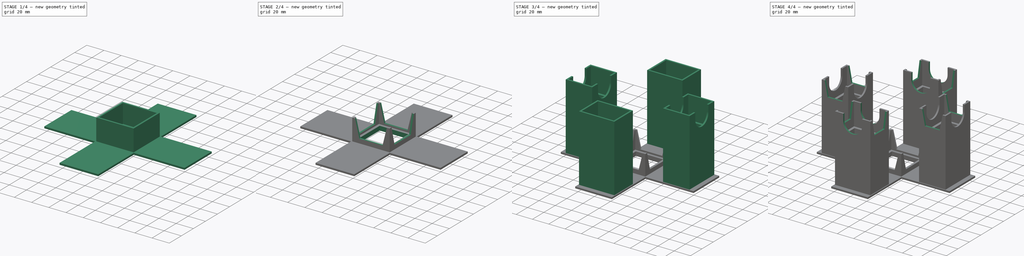
[diagram: build sequence overview — one tinted view per stage of 4, left to right]
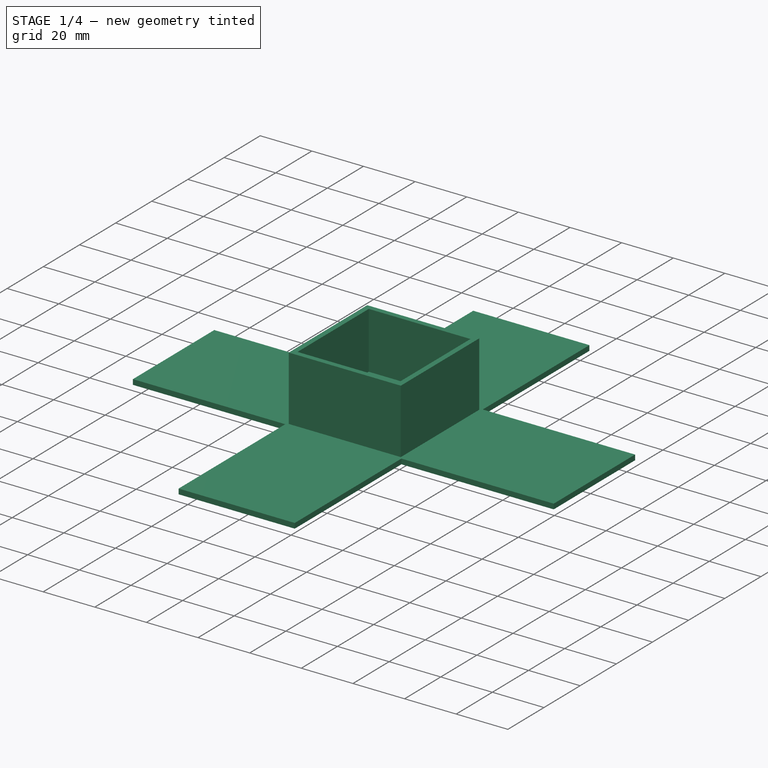
[diagram: stage 1 of 4 — iso view after this stage's code; geometry added in this stage tinted green]
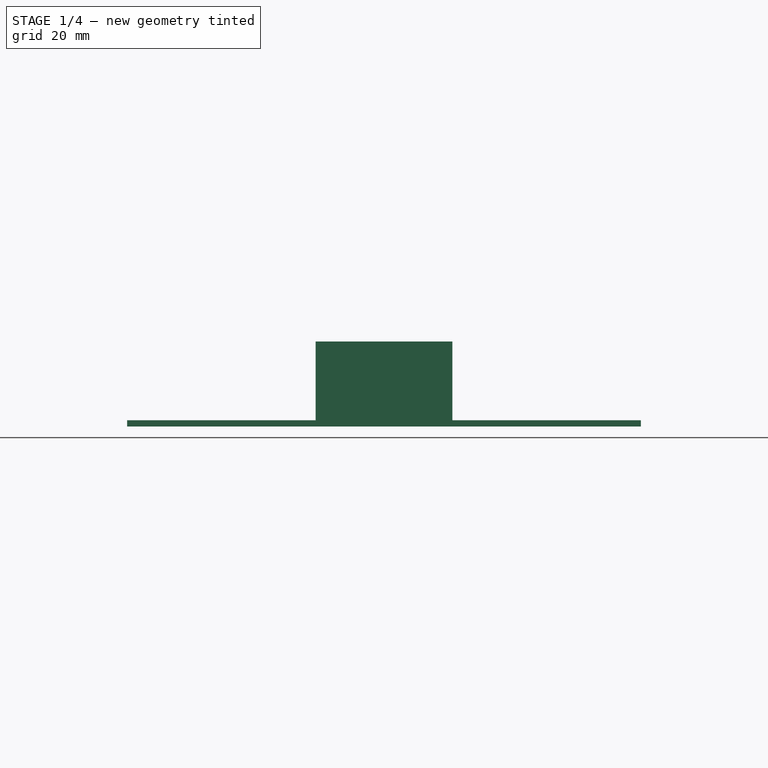
[diagram: stage 1 of 4 — front view after this stage's code; geometry added in this stage tinted green]
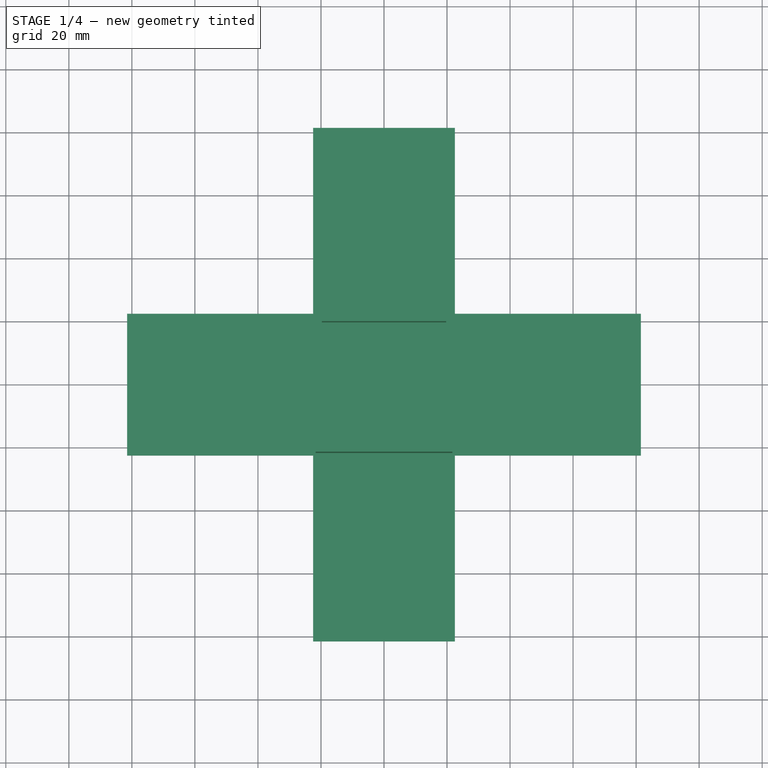
[diagram: stage 1 of 4 — top view after this stage's code; geometry added in this stage tinted green]
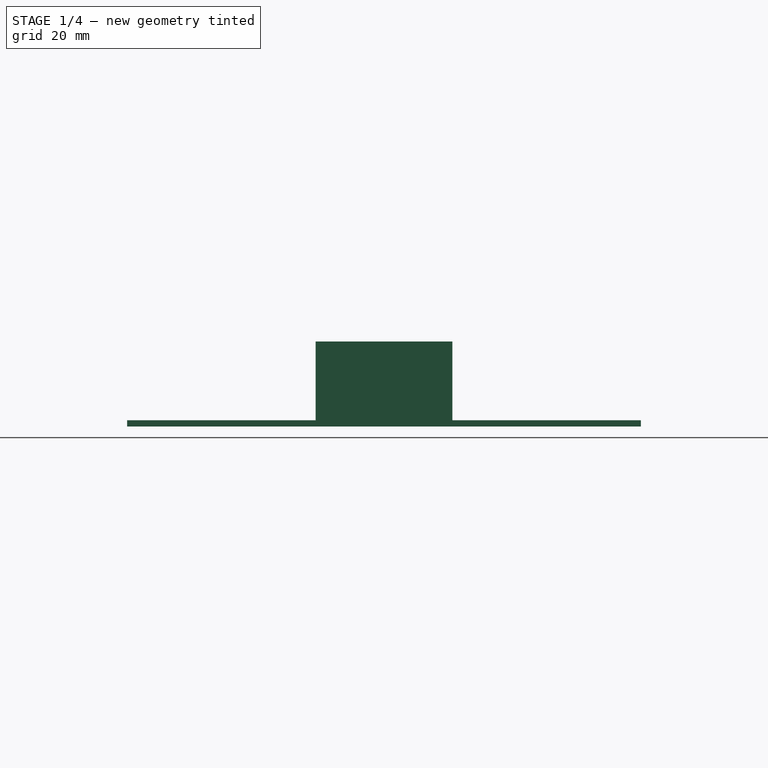
[diagram: stage 1 of 4 — right view after this stage's code; geometry added in this stage tinted green]
FCSTD DOCUMENT  (FreeCAD 0.15R4671 (Git))
Label: Rubiks Robot Frame
License: All rights reserved
LicenseURL: http://en.wikipedia.org/wiki/All_rights_reserved
objects: Sketcher::SketchObject×14, PartDesign::Pocket×10, PartDesign::Pad×3
note: 40 computed .brp shape members not serialized (recipe doc carries the construction recipe); baked Part::Feature solids carry a one-line shape summary decoded from their .brp

FEATURE [Sketcher::SketchObject] Sketch
  sketch-geometry (12):
    g0: LineSegment StartX=-81.5 StartY=22.5 StartZ=0 EndX=-22.5 EndY=22.5 EndZ=0
    g1: LineSegment StartX=-22.5 StartY=-22.5 StartZ=0 EndX=-81.5 EndY=-22.5 EndZ=0
    g2: LineSegment StartX=-81.5 StartY=-22.5 StartZ=0 EndX=-81.5 EndY=22.5 EndZ=0
    g3: LineSegment StartX=22.5 StartY=22.5 StartZ=0 EndX=22.5 EndY=81.5 EndZ=0
    g4: LineSegment StartX=22.5 StartY=81.5 StartZ=0 EndX=-22.5 EndY=81.5 EndZ=0
    g5: LineSegment StartX=-22.5 StartY=81.5 StartZ=0 EndX=-22.5 EndY=22.5 EndZ=0
    g6: LineSegment StartX=22.5 StartY=22.5 StartZ=0 EndX=81.5 EndY=22.5 EndZ=0
    g7: LineSegment StartX=81.5 StartY=22.5 StartZ=0 EndX=81.5 EndY=-22.5 EndZ=0
    g8: LineSegment StartX=81.5 StartY=-22.5 StartZ=0 EndX=22.5 EndY=-22.5 EndZ=0
    g9: LineSegment StartX=-22.5 StartY=-22.5 StartZ=0 EndX=-22.5 EndY=-81.5 EndZ=0
    g10: LineSegment StartX=-22.5 StartY=-81.5 StartZ=0 EndX=22.5 EndY=-81.5 EndZ=0
    g11: LineSegment StartX=22.5 StartY=-81.5 StartZ=0 EndX=22.5 EndY=-22.5 EndZ=0
  constraints (37):
    c: Coincident(g1,g2)
    c: Coincident(g2,g0)
    c: Horizontal(g0)
    c: Horizontal(g1)
    c: Vertical(g2)
    c: Coincident(g3,g4)
    c: Coincident(g4,g5)
    c: Vertical(g3)
    c: Vertical(g5)
    c: Coincident(g6,g7)
    c: Coincident(g7,g8)
    c: Horizontal(g6)
    c: Horizontal(g8)
    c: Vertical(g7)
    c: Coincident(g9,g10)
    c: Coincident(g10,g11)
    c: Horizontal(g10)
    c: Vertical(g9)
    c: Vertical(g11)
    c: Symmetric(g0,g1,g-1)
    c: Coincident(g0,g5)
    c: Coincident(g3,g6)
    c: Coincident(g8,g11)
    c: Coincident(g1,g9)
    c: Equal(g2,g7)
    c: Equal(g7,g4)
    c: Equal(g4,g10)
    c: Equal(g0,g5)
    c: Equal(g5,g3)
    c: Equal(g3,g6)
    c: Equal(g6,g8)
    c: Equal(g8,g11)
    c: Equal(g11,g9)
    c: Equal(g9,g1)
    c: Symmetric(g4,g3,g-2)
    c: DistanceX(g0,g6) = 163
    c: DistanceY(g6,g7) = -45
FEATURE [PartDesign::Pad] Pad
  Length = 2
  Length2 = 100
  Sketch = -> Sketch
  Type = 0
FEATURE [Sketcher::SketchObject] Sketch001
  Placement = pos=(0,0,2) rot=(0,0,1;0rad)
  Support = -> Pad [Face14]
  sketch-geometry (4):
    g0: LineSegment StartX=-21.7 StartY=21.7 StartZ=0 EndX=21.7 EndY=21.7 EndZ=0
    g1: LineSegment StartX=21.7 StartY=21.7 StartZ=0 EndX=21.7 EndY=-21.7 EndZ=0
    g2: LineSegment StartX=21.7 StartY=-21.7 StartZ=0 EndX=-21.7 EndY=-21.7 EndZ=0
    g3: LineSegment StartX=-21.7 StartY=-21.7 StartZ=0 EndX=-21.7 EndY=21.7 EndZ=0
  constraints (12):
    c: Coincident(g0,g1)
    c: Coincident(g1,g2)
    c: Coincident(g2,g3)
    c: Coincident(g3,g0)
    c: Horizontal(g0)
    c: Horizontal(g2)
    c: Vertical(g1)
    c: Vertical(g3)
    c: Symmetric(g0,g0,g-2)
    c: Symmetric(g1,g0,g-1)
    c: Equal(g1,g0)
    c: Distance(g1) = 43.4
FEATURE [PartDesign::Pad] Pad001
  Length = 25
  Length2 = 100
  Sketch = -> Sketch001
  Type = 0
FEATURE [Sketcher::SketchObject] Sketch002
  Placement = pos=(0,0,27) rot=(0,0,1;0rad)
  Support = -> Pad001 [Face26]
  sketch-geometry (4):
    g0: LineSegment StartX=-19.7 StartY=19.7 StartZ=0 EndX=19.7 EndY=19.7 EndZ=0
    g1: LineSegment StartX=19.7 StartY=19.7 StartZ=0 EndX=19.7 EndY=-19.7 EndZ=0
    g2: LineSegment StartX=19.7 StartY=-19.7 StartZ=0 EndX=-19.7 EndY=-19.7 EndZ=0
    g3: LineSegment StartX=-19.7 StartY=-19.7 StartZ=0 EndX=-19.7 EndY=19.7 EndZ=0
  constraints (12):
    c: Coincident(g0,g1)
    c: Coincident(g1,g2)
    c: Coincident(g2,g3)
    c: Coincident(g3,g0)
    c: Horizontal(g0)
    c: Horizontal(g2)
    c: Vertical(g1)
    c: Vertical(g3)
    c: Symmetric(g0,g0,g-2)
    c: Symmetric(g1,g0,g-1)
    c: Equal(g1,g0)
    c: Distance(g1) = 39.4
FEATURE [PartDesign::Pocket] Pocket
  Length = 22
  Sketch = -> Sketch002
  Type = 0
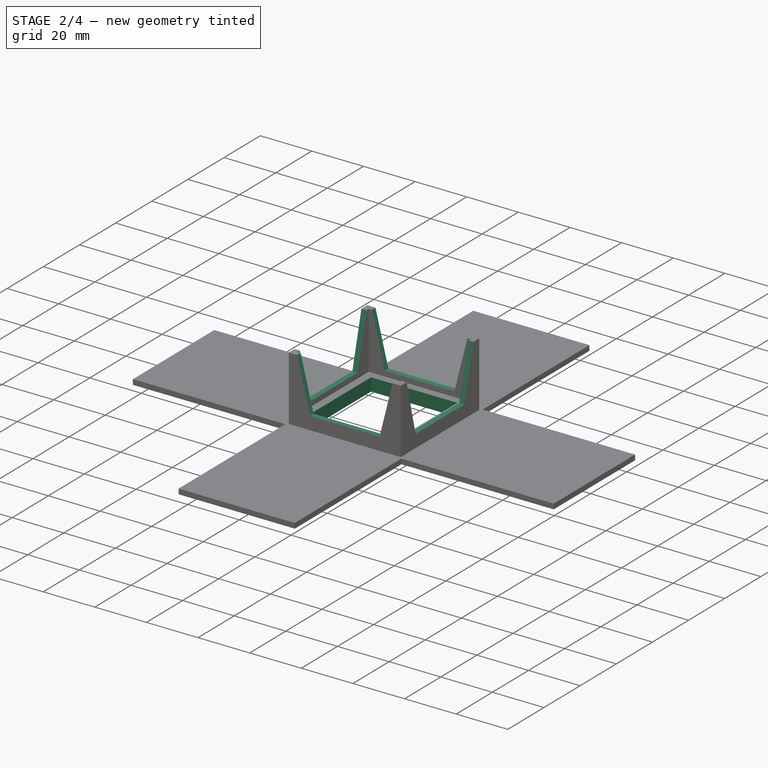
[diagram: stage 2 of 4 — iso view after this stage's code; geometry added in this stage tinted green]
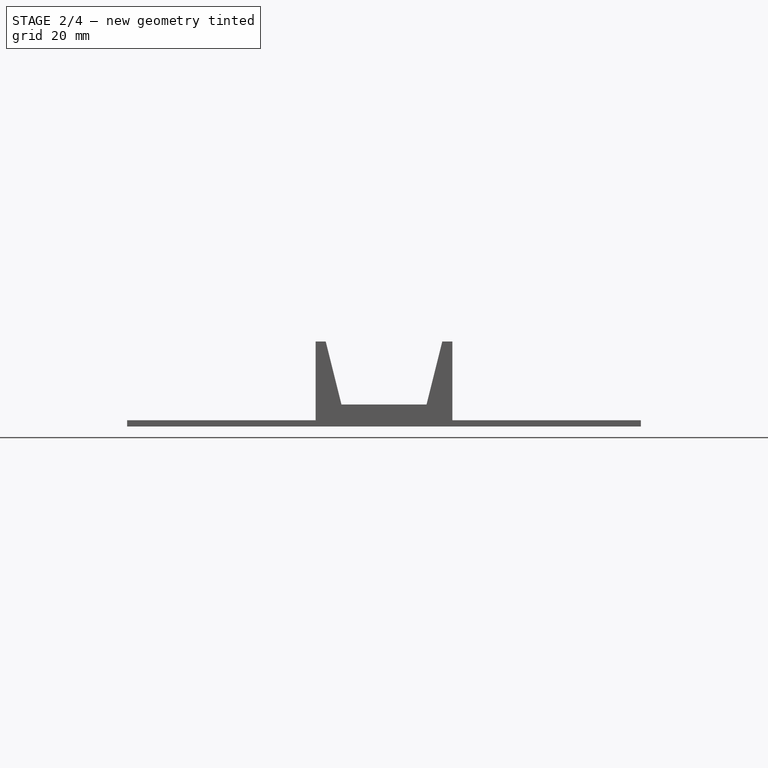
[diagram: stage 2 of 4 — front view after this stage's code; geometry added in this stage tinted green]
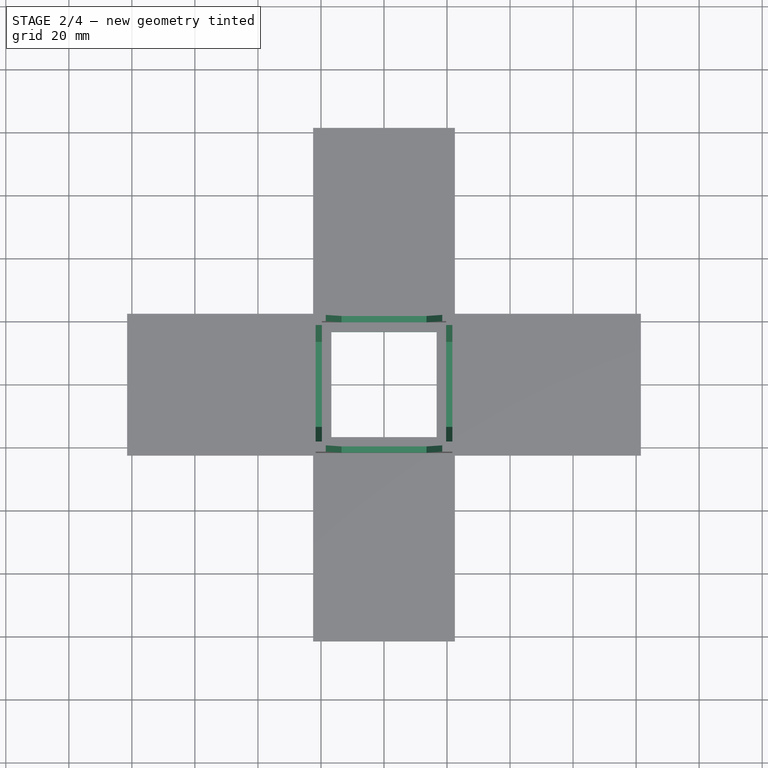
[diagram: stage 2 of 4 — top view after this stage's code; geometry added in this stage tinted green]
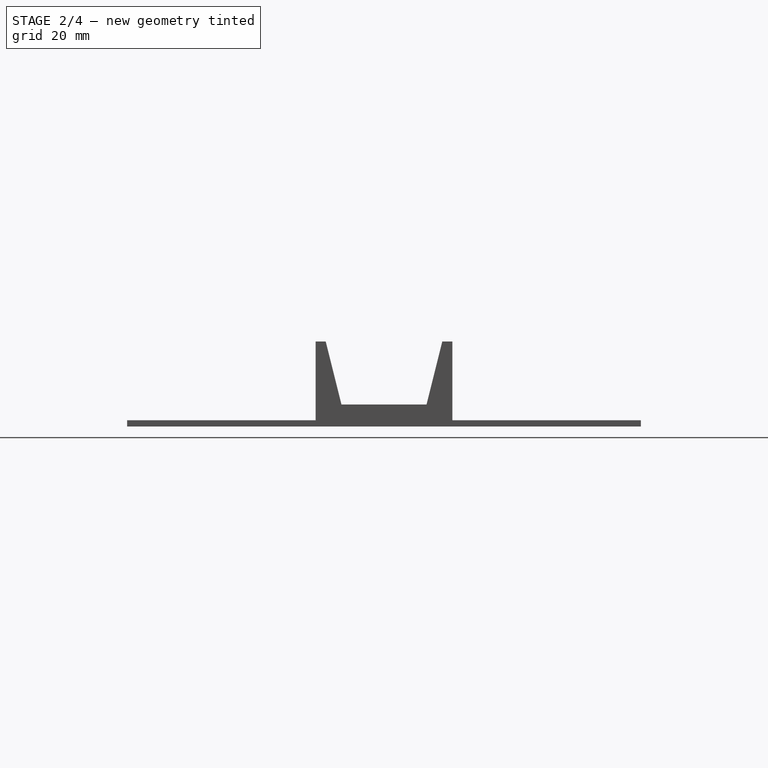
[diagram: stage 2 of 4 — right view after this stage's code; geometry added in this stage tinted green]
FEATURE [Sketcher::SketchObject] Sketch003
  Placement = pos=(0,0,5) rot=(0,0,1;0rad)
  Support = -> Pocket [Face31]
  sketch-geometry (4):
    g0: LineSegment StartX=-16.7 StartY=16.7 StartZ=0 EndX=16.7 EndY=16.7 EndZ=0
    g1: LineSegment StartX=16.7 StartY=16.7 StartZ=0 EndX=16.7 EndY=-16.7 EndZ=0
    g2: LineSegment StartX=16.7 StartY=-16.7 StartZ=0 EndX=-16.7 EndY=-16.7 EndZ=0
    g3: LineSegment StartX=-16.7 StartY=-16.7 StartZ=0 EndX=-16.7 EndY=16.7 EndZ=0
  constraints (12):
    c: Coincident(g0,g1)
    c: Coincident(g1,g2)
    c: Coincident(g2,g3)
    c: Coincident(g3,g0)
    c: Horizontal(g0)
    c: Horizontal(g2)
    c: Vertical(g1)
    c: Vertical(g3)
    c: Symmetric(g0,g0,g-2)
    c: Symmetric(g1,g0,g-1)
    c: Equal(g1,g0)
    c: Distance(g1) = 33.4
FEATURE [PartDesign::Pocket] Pocket001
  Length = 5
  Sketch = -> Sketch003
  Type = 1
FEATURE [Sketcher::SketchObject] Sketch004
  ExternalGeometry = -> [Pocket001]
  Placement = pos=(0,-81.5,0) rot=(1,0,0;1.5708rad)
  Support = -> Pocket001 [Face6]
  sketch-geometry (4):
    g0: LineSegment StartX=-18.5 StartY=27 StartZ=0 EndX=18.5 EndY=27 EndZ=0
    g1: LineSegment StartX=18.5 StartY=27 StartZ=0 EndX=13.5 EndY=7 EndZ=0
    g2: LineSegment StartX=13.5 StartY=7 StartZ=0 EndX=-13.5 EndY=7 EndZ=0
    g3: LineSegment StartX=-13.5 StartY=7 StartZ=0 EndX=-18.5 EndY=27 EndZ=0
  constraints (10):
    c: Coincident(g0,g1)
    c: Coincident(g1,g2)
    c: Coincident(g2,g3)
    c: Coincident(g3,g0)
    c: Horizontal(g0)
    c: Horizontal(g2)
    c: Symmetric(g0,g0,g-2)
    c: DistanceX(g0,g0) = 37
    c: Distance(g2) = 27
    c: Symmetric(g1,g2,g-2)
FEATURE [PartDesign::Pocket] Pocket002
  Length = 5
  Sketch = -> Sketch004
  Type = 1
FEATURE [Sketcher::SketchObject] Sketch005
  ExternalGeometry = -> [Pocket002]
  Placement = pos=(-21.7,0,0) rot=(0.57735,-0.57735,-0.57735;2.0944rad)
  Support = -> Pocket002 [Face22]
  sketch-geometry (4):
    g0: LineSegment StartX=-18.5 StartY=27 StartZ=0 EndX=18.5 EndY=27 EndZ=0
    g1: LineSegment StartX=18.5 StartY=27 StartZ=0 EndX=13.5 EndY=7 EndZ=0
    g2: LineSegment StartX=13.5 StartY=7 StartZ=0 EndX=-13.5 EndY=7 EndZ=0
    g3: LineSegment StartX=-13.5 StartY=7 StartZ=0 EndX=-18.5 EndY=27 EndZ=0
  constraints (4):
    c: Symmetric(g0,g0,g-2)
    c: Symmetric(g2,g1,g-2)
    c: Distance(g2) = 27
    c: Distance(g0) = 37
FEATURE [PartDesign::Pocket] Pocket003
  Length = 5
  Sketch = -> Sketch005
  Type = 1
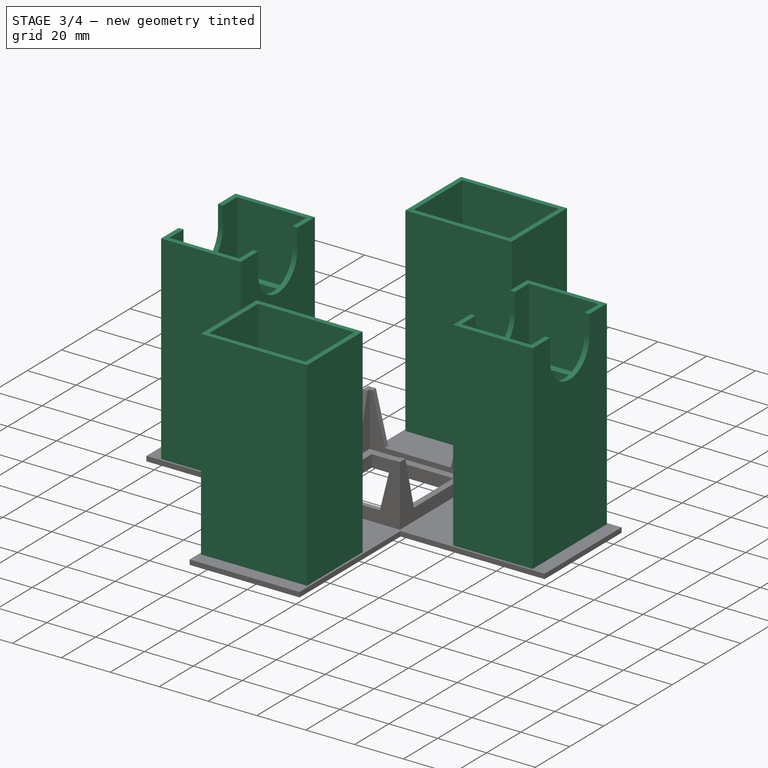
[diagram: stage 3 of 4 — iso view after this stage's code; geometry added in this stage tinted green]
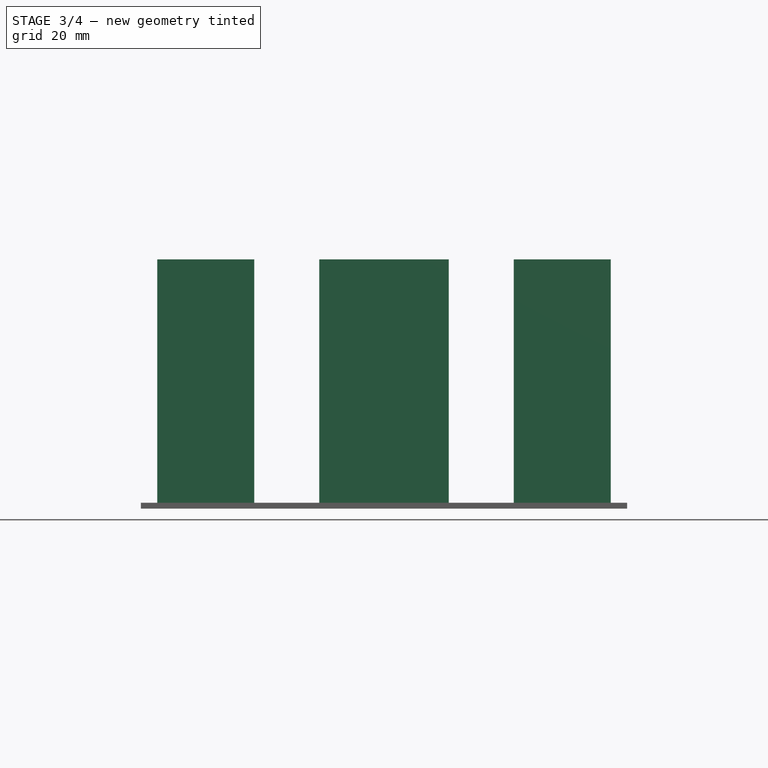
[diagram: stage 3 of 4 — front view after this stage's code; geometry added in this stage tinted green]
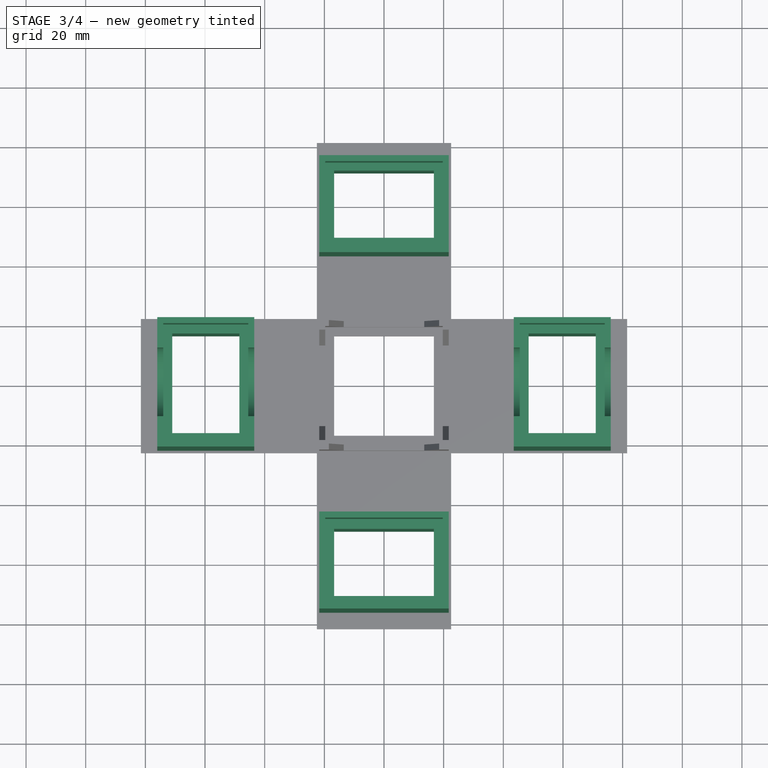
[diagram: stage 3 of 4 — top view after this stage's code; geometry added in this stage tinted green]
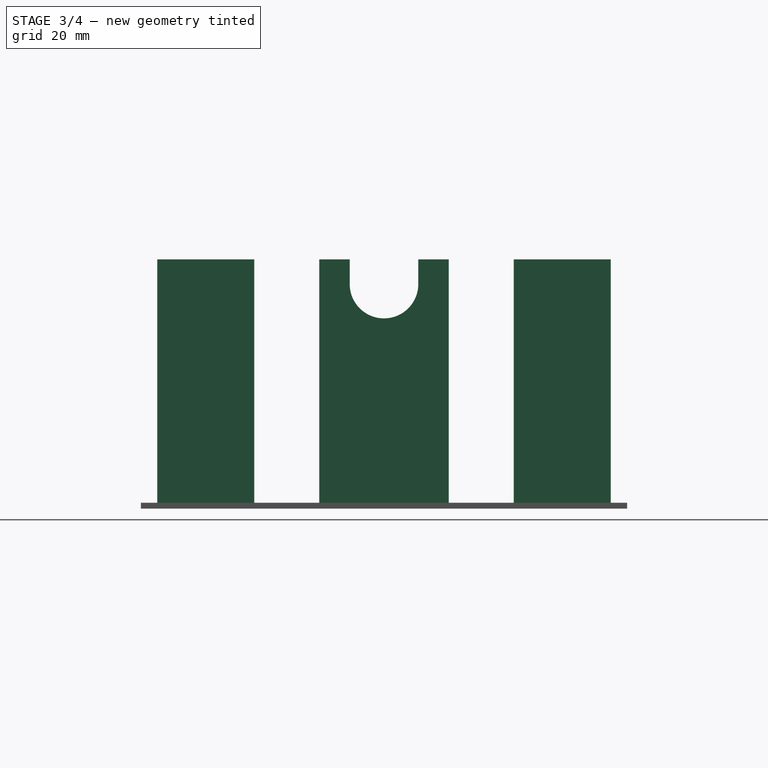
[diagram: stage 3 of 4 — right view after this stage's code; geometry added in this stage tinted green]
FEATURE [Sketcher::SketchObject] Sketch006
  ExternalGeometry = -> [Pocket003]
  Placement = pos=(0,0,2) rot=(0,0,1;0rad)
  Support = -> Pocket003 [Face5]
  sketch-geometry (24):
    g0: LineSegment StartX=-76 StartY=21.7 StartZ=0 EndX=-43.5 EndY=21.7 EndZ=0
    g1: LineSegment StartX=-43.5 StartY=21.7 StartZ=0 EndX=-43.5 EndY=-21.7 EndZ=0
    g2: LineSegment StartX=-43.5 StartY=-21.7 StartZ=0 EndX=-76 EndY=-21.7 EndZ=0
    g3: LineSegment StartX=-76 StartY=-21.7 StartZ=0 EndX=-76 EndY=21.7 EndZ=0
    g4: LineSegment [constr] StartX=-43.5 StartY=21.7 StartZ=0 EndX=-21.7 EndY=21.7 EndZ=0
    g5: LineSegment [constr] StartX=-43.5 StartY=-21.7 StartZ=0 EndX=-21.7 EndY=-21.7 EndZ=0
    g6: LineSegment StartX=43.5 StartY=21.7 StartZ=0 EndX=76 EndY=21.7 EndZ=0
    g7: LineSegment StartX=76 StartY=21.7 StartZ=0 EndX=76 EndY=-21.7 EndZ=0
    g8: LineSegment StartX=76 StartY=-21.7 StartZ=0 EndX=43.5 EndY=-21.7 EndZ=0
    g9: LineSegment StartX=43.5 StartY=-21.7 StartZ=0 EndX=43.5 EndY=21.7 EndZ=0
    g10: LineSegment StartX=-21.7 StartY=43.5 StartZ=0 EndX=21.7 EndY=43.5 EndZ=0
    g11: LineSegment StartX=21.7 StartY=43.5 StartZ=0 EndX=21.7 EndY=76 EndZ=0
    g12: LineSegment StartX=21.7 StartY=76 StartZ=0 EndX=-21.7 EndY=76 EndZ=0
    g13: LineSegment StartX=-21.7 StartY=76 StartZ=0 EndX=-21.7 EndY=43.5 EndZ=0
    g14: LineSegment StartX=-21.7 StartY=-43.5 StartZ=0 EndX=21.7 EndY=-43.5 EndZ=0
    g15: LineSegment StartX=21.7 StartY=-43.5 StartZ=0 EndX=21.7 EndY=-76 EndZ=0
    g16: LineSegment StartX=21.7 StartY=-76 StartZ=0 EndX=-21.7 EndY=-76 EndZ=0
    g17: LineSegment StartX=-21.7 StartY=-76 StartZ=0 EndX=-21.7 EndY=-43.5 EndZ=0
    g18: LineSegment [constr] StartX=-21.7 StartY=-21.7 StartZ=0 EndX=-21.7 EndY=-43.5 EndZ=0
    g19: LineSegment [constr] StartX=21.7 StartY=-21.7 StartZ=0 EndX=21.7 EndY=-43.5 EndZ=0
    g20: LineSegment [constr] StartX=21.7 StartY=-21.7 StartZ=0 EndX=43.5 EndY=-21.7 EndZ=0
    g21: LineSegment [constr] StartX=21.7 StartY=21.7 StartZ=0 EndX=43.5 EndY=21.7 EndZ=0
    g22: LineSegment [constr] StartX=21.7 StartY=21.7 StartZ=0 EndX=21.7 EndY=43.5 EndZ=0
    g23: LineSegment [constr] StartX=-21.7 StartY=43.5 StartZ=0 EndX=-21.7 EndY=21.7 EndZ=0
  constraints (64):
    c: Coincident(g0,g1)
    c: Coincident(g1,g2)
    c: Coincident(g2,g3)
    c: Coincident(g3,g0)
    c: Horizontal(g0)
    c: Horizontal(g2)
    c: Vertical(g1)
    c: Vertical(g3)
    c: Coincident(g4,g0)
    c: Coincident(g4,g-9)
    c: Coincident(g5,g1)
    c: Coincident(g5,g-8)
    c: Horizontal(g4)
    c: Horizontal(g5)
    c: Distance(g0) = 32.5
    c: DistanceX(g0,g-6) = 23.8
    c: Coincident(g6,g7)
    c: Coincident(g7,g8)
    c: Coincident(g8,g9)
    c: Coincident(g9,g6)
    c: Horizontal(g6)
    c: Horizontal(g8)
    c: Vertical(g7)
    c: Vertical(g9)
    c: Coincident(g10,g11)
    c: Coincident(g11,g12)
    c: Coincident(g12,g13)
    c: Coincident(g13,g10)
    c: Horizontal(g10)
    c: Horizontal(g12)
    c: Vertical(g11)
    c: Vertical(g13)
    c: Coincident(g14,g15)
    c: Coincident(g15,g16)
    c: Coincident(g16,g17)
    c: Coincident(g17,g14)
    c: Horizontal(g14)
    c: Horizontal(g16)
    c: Vertical(g15)
    c: Vertical(g17)
    c: Coincident(g18,g5)
    c: Coincident(g18,g14)
    c: Coincident(g19,g-10)
    c: Coincident(g19,g14)
    c: Vertical(g19)
    c: Coincident(g20,g19)
    c: Coincident(g20,g8)
    c: Horizontal(g20)
    c: Coincident(g21,g-10)
    c: Coincident(g21,g6)
    c: Coincident(g22,g10)
    c: Coincident(g23,g10)
    c: Coincident(g23,g4)
    c: Vertical(g23)
    c: Vertical(g22)
    c: Vertical(g18)
    c: Horizontal(g21)
    c: Equal(g4,g23)
    c: Equal(g23,g21)
    c: Equal(g21,g19)
    c: Coincident(g21,g22)
    c: Equal(g0,g13)
    c: Equal(g13,g6)
    c: Equal(g6,g15)
FEATURE [PartDesign::Pad] Pad002
  Length = 81.6
  Length2 = 100
  Sketch = -> Sketch006
  Type = 0
FEATURE [Sketcher::SketchObject] Sketch007
  ExternalGeometry = -> [Pad002]
  Placement = pos=(0,0,83.6) rot=(0,0,1;0rad)
  Support = -> Pad002 [Face41]
  sketch-geometry (20):
    g0: LineSegment StartX=-74 StartY=19.7 StartZ=0 EndX=-45.5 EndY=19.7 EndZ=0
    g1: LineSegment StartX=-45.5 StartY=19.7 StartZ=0 EndX=-45.5 EndY=-19.7 EndZ=0
    g2: LineSegment StartX=-45.5 StartY=-19.7 StartZ=0 EndX=-74 EndY=-19.7 EndZ=0
    g3: LineSegment StartX=-74 StartY=-19.7 StartZ=0 EndX=-74 EndY=19.7 EndZ=0
    g4: LineSegment StartX=45.5 StartY=19.7 StartZ=0 EndX=74 EndY=19.7 EndZ=0
    g5: LineSegment StartX=74 StartY=19.7 StartZ=0 EndX=74 EndY=-19.7 EndZ=0
    g6: LineSegment StartX=74 StartY=-19.7 StartZ=0 EndX=45.5 EndY=-19.7 EndZ=0
    g7: LineSegment StartX=45.5 StartY=-19.7 StartZ=0 EndX=45.5 EndY=19.7 EndZ=0
    g8: LineSegment StartX=-19.7 StartY=74 StartZ=0 EndX=19.7 EndY=74 EndZ=0
    g9: LineSegment StartX=19.7 StartY=74 StartZ=0 EndX=19.7 EndY=45.5 EndZ=0
    g10: LineSegment StartX=19.7 StartY=45.5 StartZ=0 EndX=-19.7 EndY=45.5 EndZ=0
    g11: LineSegment StartX=-19.7 StartY=45.5 StartZ=0 EndX=-19.7 EndY=74 EndZ=0
    g12: LineSegment StartX=-19.7 StartY=-45.5 StartZ=0 EndX=19.7 EndY=-45.5 EndZ=0
    g13: LineSegment StartX=19.7 StartY=-45.5 StartZ=0 EndX=19.7 EndY=-74 EndZ=0
    g14: LineSegment StartX=19.7 StartY=-74 StartZ=0 EndX=-19.7 EndY=-74 EndZ=0
    g15: LineSegment StartX=-19.7 StartY=-74 StartZ=0 EndX=-19.7 EndY=-45.5 EndZ=0
    g16: LineSegment [constr] StartX=-19.7 StartY=19.7 StartZ=0 EndX=-19.7 EndY=45.5 EndZ=0
    g17: LineSegment [constr] StartX=19.7 StartY=19.7 StartZ=0 EndX=45.5 EndY=19.7 EndZ=0
    g18: LineSegment [constr] StartX=-45.5 StartY=-19.7 StartZ=0 EndX=-19.7 EndY=-19.7 EndZ=0
    g19: LineSegment [constr] StartX=19.7 StartY=-45.5 StartZ=0 EndX=19.7 EndY=-19.7 EndZ=0
  constraints (57):
    c: Coincident(g0,g1)
    c: Coincident(g1,g2)
    c: Coincident(g2,g3)
    c: Coincident(g3,g0)
    c: Horizontal(g0)
    c: Horizontal(g2)
    c: Vertical(g3)
    c: Coincident(g4,g5)
    c: Coincident(g5,g6)
    c: Coincident(g6,g7)
    c: Coincident(g7,g4)
    c: Horizontal(g4)
    c: Horizontal(g6)
    c: Vertical(g5)
    c: Vertical(g7)
    c: Coincident(g8,g9)
    c: Coincident(g9,g10)
    c: Coincident(g10,g11)
    c: Coincident(g11,g8)
    c: Horizontal(g8)
    c: Horizontal(g10)
    c: Vertical(g9)
    c: Vertical(g11)
    c: Coincident(g12,g13)
    c: Coincident(g13,g14)
    c: Coincident(g14,g15)
    c: Coincident(g15,g12)
    c: Horizontal(g12)
    c: Horizontal(g14)
    c: Vertical(g13)
    c: Vertical(g15)
    c: Equal(g1,g10)
    c: Equal(g10,g7)
    c: Equal(g7,g12)
    c: Symmetric(g0,g1,g-1)
    c: Symmetric(g4,g6,g-1)
    c: Symmetric(g9,g10,g-2)
    c: Symmetric(g12,g12,g-2)
    c: Equal(g9,g4)
    c: Equal(g4,g13)
    c: Equal(g13,g2)
    c: Distance(g9) = 28.5
    c: Coincident(g16,g10)
    c: Vertical(g16)
    c: Coincident(g17,g-12)
    c: Horizontal(g17)
    c: Coincident(g18,g1)
    c: Coincident(g18,g-14)
    c: Horizontal(g18)
    c: Coincident(g19,g12)
    c: Coincident(g19,g-13)
    c: Equal(g16,g17)
    c: Equal(g17,g19)
    c: Equal(g19,g18)
    c: Distance(g18) = 25.8
    c: Coincident(g17,g4)
    c: Coincident(g-14,g16)
FEATURE [PartDesign::Pocket] Pocket004
  Length = 27.8
  Sketch = -> Sketch007
  Type = 0
FEATURE [Sketcher::SketchObject] Sketch008
  ExternalGeometry = -> [Pocket004]
  Placement = pos=(0,0,55.8) rot=(0,0,1;0rad)
  Support = -> Pocket004 [Face81]
  sketch-geometry (16):
    g0: LineSegment StartX=-71 StartY=16.7 StartZ=0 EndX=-48.5 EndY=16.7 EndZ=0
    g1: LineSegment StartX=-48.5 StartY=16.7 StartZ=0 EndX=-48.5 EndY=-16.7 EndZ=0
    g2: LineSegment StartX=-48.5 StartY=-16.7 StartZ=0 EndX=-71 EndY=-16.7 EndZ=0
    g3: LineSegment StartX=-71 StartY=-16.7 StartZ=0 EndX=-71 EndY=16.7 EndZ=0
    g4: LineSegment StartX=-16.7 StartY=71.3101 StartZ=0 EndX=16.7 EndY=71.3101 EndZ=0
    g5: LineSegment StartX=16.7 StartY=71.3101 StartZ=0 EndX=16.7 EndY=48.8101 EndZ=0
    g6: LineSegment StartX=16.7 StartY=48.8101 StartZ=0 EndX=-16.7 EndY=48.8101 EndZ=0
    g7: LineSegment StartX=-16.7 StartY=48.8101 StartZ=0 EndX=-16.7 EndY=71.3101 EndZ=0
    g8: LineSegment StartX=48.5 StartY=16.7 StartZ=0 EndX=71 EndY=16.7 EndZ=0
    g9: LineSegment StartX=71 StartY=16.7 StartZ=0 EndX=71 EndY=-16.7 EndZ=0
    g10: LineSegment StartX=71 StartY=-16.7 StartZ=0 EndX=48.5 EndY=-16.7 EndZ=0
    g11: LineSegment StartX=48.5 StartY=-16.7 StartZ=0 EndX=48.5 EndY=16.7 EndZ=0
    g12: LineSegment StartX=-16.7 StartY=-48.8101 StartZ=0 EndX=16.7 EndY=-48.8101 EndZ=0
    g13: LineSegment StartX=16.7 StartY=-48.8101 StartZ=0 EndX=16.7 EndY=-71.3101 EndZ=0
    g14: LineSegment StartX=16.7 StartY=-71.3101 StartZ=0 EndX=-16.7 EndY=-71.3101 EndZ=0
    g15: LineSegment StartX=-16.7 StartY=-71.3101 StartZ=0 EndX=-16.7 EndY=-48.8101 EndZ=0
  constraints (53):
    c: Coincident(g0,g1)
    c: Coincident(g1,g2)
    c: Coincident(g2,g3)
    c: Coincident(g3,g0)
    c: Horizontal(g0)
    c: Horizontal(g2)
    c: Vertical(g3)
    c: Coincident(g4,g5)
    c: Coincident(g5,g6)
    c: Coincident(g6,g7)
    c: Coincident(g7,g4)
    c: Horizontal(g4)
    c: Horizontal(g6)
    c: Vertical(g5)
    c: Vertical(g7)
    c: Coincident(g8,g9)
    c: Coincident(g9,g10)
    c: Coincident(g10,g11)
    c: Coincident(g11,g8)
    c: Horizontal(g8)
    c: Horizontal(g10)
    c: Vertical(g9)
    c: Vertical(g11)
    c: Coincident(g12,g13)
    c: Coincident(g13,g14)
    c: Coincident(g14,g15)
    c: Coincident(g15,g12)
    c: Horizontal(g12)
    c: Horizontal(g14)
    c: Vertical(g13)
    c: Vertical(g15)
    c: Equal(g14,g12)
    c: Equal(g12,g3)
    c: Equal(g11,g9)
    c: Equal(g9,g6)
    c: Equal(g6,g4)
    c: Equal(g7,g5)
    c: Equal(g5,g8)
    c: Equal(g8,g10)
    c: Equal(g10,g13)
    c: Equal(g13,g15)
    c: Equal(g15,g2)
    c: Equal(g2,g0)
    c: Symmetric(g0,g8,g-2)
    c: Symmetric(g12,g6,g-1)
    c: Symmetric(g0,g1,g-1)
    c: Symmetric(g5,g6,g-2)
    c: DistanceX(g0,g-17) = 3
    c: DistanceX(g2,g-16) = -3
    c: DistanceY(g2,g-16) = -3
    c: Equal(g6,g1)
    c: Equal(g1,g11)
    c: Equal(g11,g12)
FEATURE [PartDesign::Pocket] Pocket005
  Length = 5
  Sketch = -> Sketch008
  Type = 1
FEATURE [Sketcher::SketchObject] Sketch009
  ExternalGeometry = -> [Pocket005]
  Placement = pos=(-76,0,0) rot=(0.57735,-0.57735,-0.57735;2.0944rad)
  Support = -> Pocket005 [Face41]
  sketch-geometry (4):
    g0: LineSegment StartX=-11.5 StartY=83.6 StartZ=0 EndX=11.5 EndY=83.6 EndZ=0
    g1: LineSegment StartX=11.5 StartY=83.6 StartZ=0 EndX=11.5 EndY=75.3 EndZ=0
    g2: LineSegment StartX=-11.5 StartY=75.3 StartZ=0 EndX=-11.5 EndY=83.6 EndZ=0
    g3: ArcOfCircle CenterX=0 CenterY=75.3 CenterZ=0 NormalX=0 NormalY=0 NormalZ=1 Radius=11.5 StartAngle=3.1416 EndAngle=6.28319
  constraints (13):
    c: Coincident(g0,g1)
    c: Coincident(g2,g0)
    c: Horizontal(g0)
    c: Vertical(g1)
    c: Vertical(g2)
    c: Coincident(g3,g1)
    c: PointOnObject(g3,g-2)
    c: Coincident(g2,g3)
    c: PointOnObject(g0,g-4)
    c: Distance(g0) = 23
    c: DistanceY(g-3,g3) = 19.5
    c: Tangent(g3,g1)
    c: Tangent(g3,g2)
FEATURE [PartDesign::Pocket] Pocket006
  Length = 5
  Sketch = -> Sketch009
  Type = 1
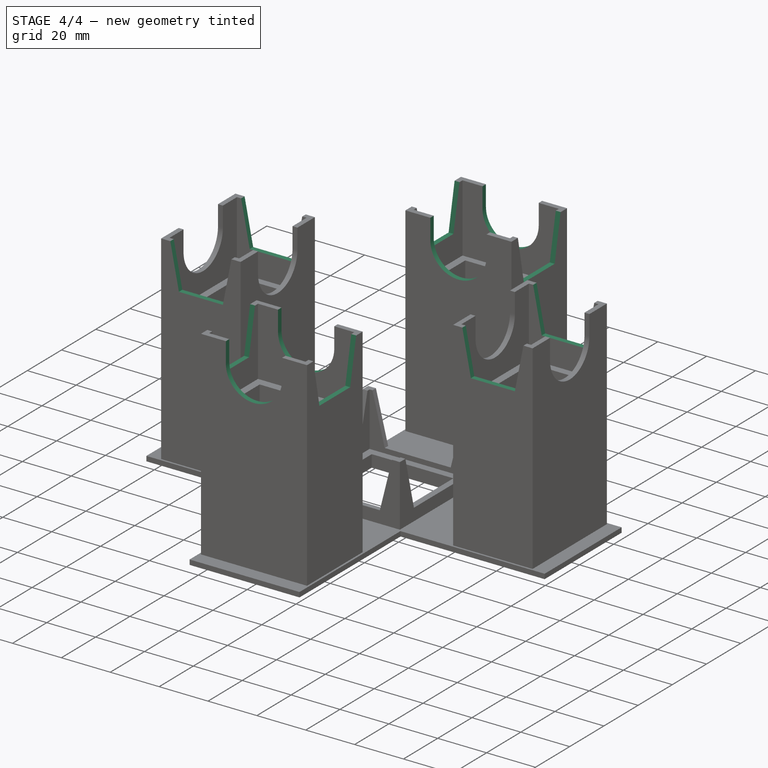
[diagram: stage 4 of 4 — iso view after this stage's code; geometry added in this stage tinted green]
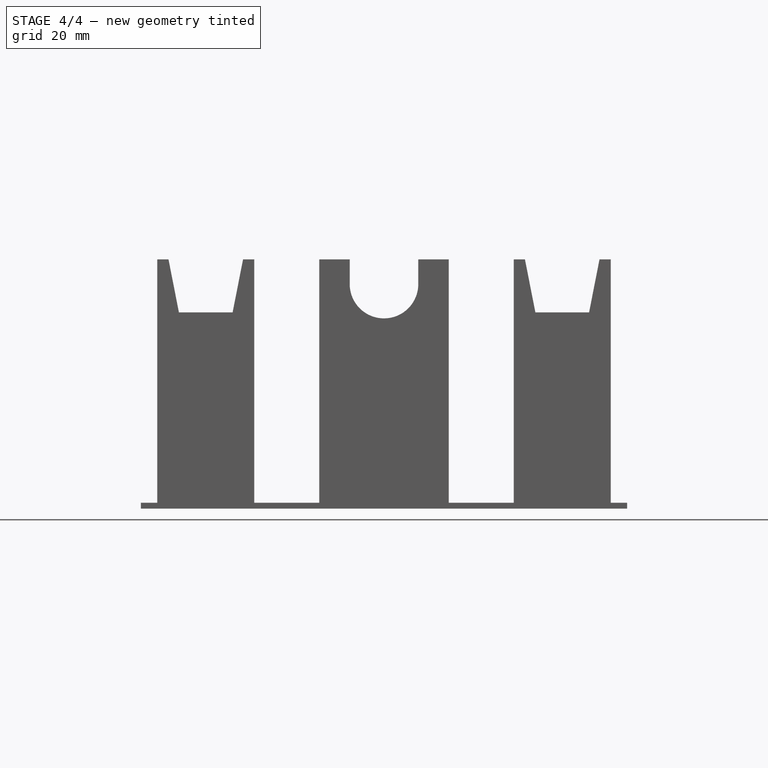
[diagram: stage 4 of 4 — front view after this stage's code; geometry added in this stage tinted green]
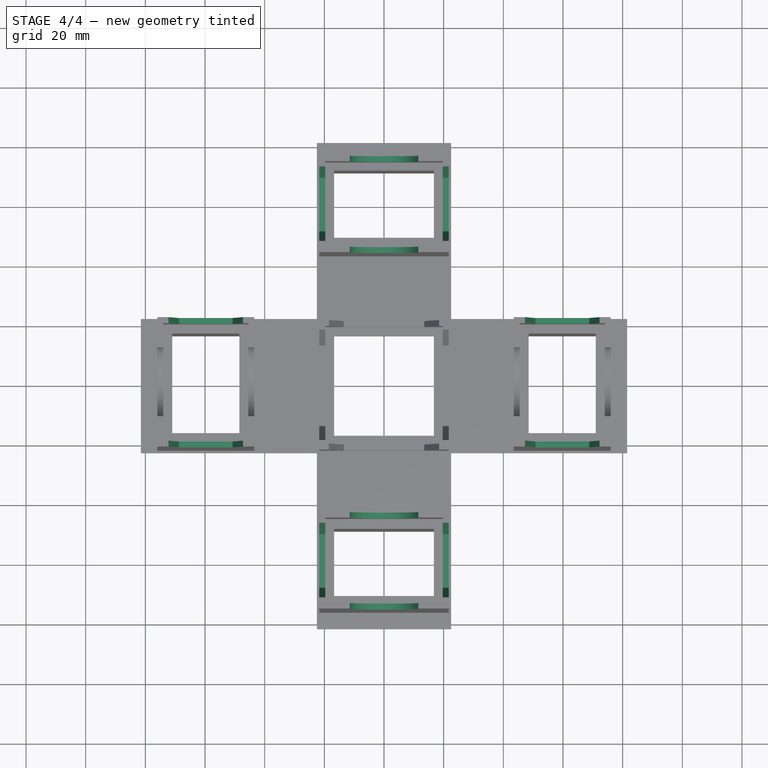
[diagram: stage 4 of 4 — top view after this stage's code; geometry added in this stage tinted green]
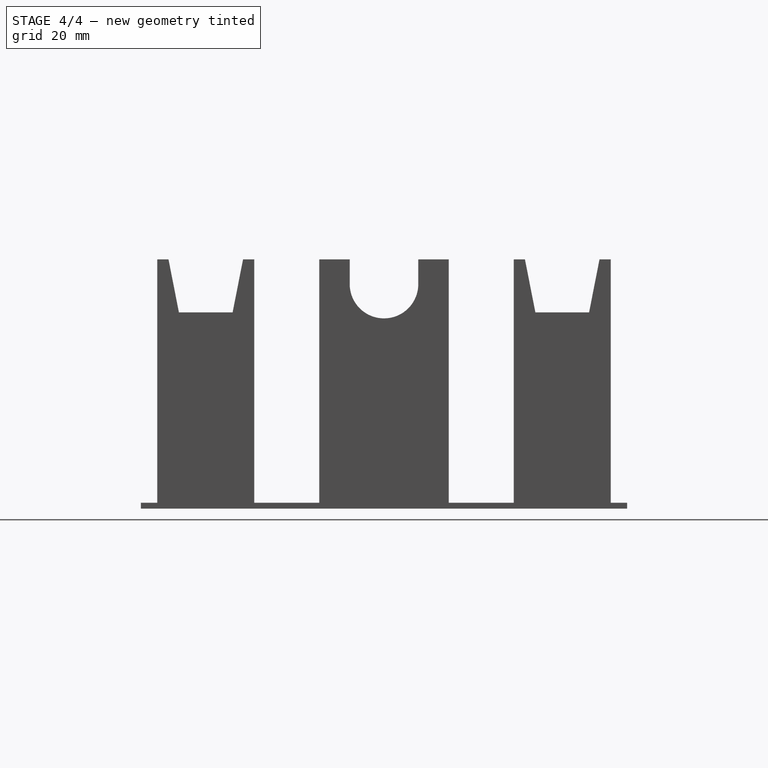
[diagram: stage 4 of 4 — right view after this stage's code; geometry added in this stage tinted green]
FEATURE [Sketcher::SketchObject] Sketch010
  ExternalGeometry = -> [Pocket006]
  Placement = pos=(0,76,0) rot=(0,0.707107,0.707107;3.14159rad)
  Support = -> Pocket006 [Face37]
  sketch-geometry (4):
    g0: LineSegment StartX=-11.5 StartY=83.6 StartZ=0 EndX=11.5 EndY=83.6 EndZ=0
    g1: LineSegment StartX=11.5 StartY=83.6 StartZ=0 EndX=11.5 EndY=75.3 EndZ=0
    g2: LineSegment StartX=-11.5 StartY=75.3 StartZ=0 EndX=-11.5 EndY=83.6 EndZ=0
    g3: ArcOfCircle CenterX=0 CenterY=75.3 CenterZ=0 NormalX=0 NormalY=0 NormalZ=1 Radius=11.5 StartAngle=3.14159 EndAngle=6.28319
  constraints (13):
    c: Coincident(g0,g1)
    c: Coincident(g2,g0)
    c: Horizontal(g0)
    c: Vertical(g1)
    c: Vertical(g2)
    c: Coincident(g3,g1)
    c: PointOnObject(g3,g-2)
    c: Coincident(g2,g3)
    c: Distance(g0) = 23
    c: DistanceY(g-4,g3) = 19.5
    c: PointOnObject(g0,g-3)
    c: Tangent(g3,g1)
    c: Tangent(g3,g2)
FEATURE [PartDesign::Pocket] Pocket007
  Length = 5
  Sketch = -> Sketch010
  Type = 1
FEATURE [Sketcher::SketchObject] Sketch011
  Placement = pos=(21.7,0,0) rot=(0.57735,0.57735,0.57735;2.0944rad)
  Support = -> Pocket007 [Face36]
  sketch-geometry (7):
    g0: LineSegment StartX=47.25 StartY=83.6 StartZ=0 EndX=50.75 EndY=65.8 EndZ=0
    g1: LineSegment StartX=50.75 StartY=65.8 StartZ=0 EndX=68.75 EndY=65.8 EndZ=0
    g2: LineSegment StartX=68.75 StartY=65.8 StartZ=0 EndX=72.25 EndY=83.6 EndZ=0
    g3: LineSegment StartX=-72.25 StartY=83.6 StartZ=0 EndX=-47.25 EndY=83.6 EndZ=0
    g4: LineSegment StartX=-47.25 StartY=83.6 StartZ=0 EndX=-50.75 EndY=65.8 EndZ=0
    g5: LineSegment StartX=-50.75 StartY=65.8 StartZ=0 EndX=-68.75 EndY=65.8 EndZ=0
    g6: LineSegment StartX=-68.75 StartY=65.8 StartZ=0 EndX=-72.25 EndY=83.6 EndZ=0
  constraints (15):
    c: Coincident(g0,g1)
    c: Horizontal(g1)
    c: Coincident(g1,g2)
    c: DistanceX(g0,g2) = 25
    c: Distance(g1) = 18
    c: Horizontal(g3)
    c: Coincident(g3,g4)
    c: Coincident(g4,g5)
    c: Horizontal(g5)
    c: Coincident(g5,g6)
    c: Coincident(g6,g3)
    c: Symmetric(g4,g0,g-2)
    c: Symmetric(g5,g1,g-2)
    c: Symmetric(g3,g2,g-2)
    c: Symmetric(g3,g0,g-2)
FEATURE [PartDesign::Pocket] Pocket008
  Length = 5
  Sketch = -> Sketch011
  Type = 1
FEATURE [Sketcher::SketchObject] Sketch012
  Placement = pos=(0,21.7,0) rot=(0,0.707107,0.707107;3.14159rad)
  Support = -> Pocket008 [Face50]
  sketch-geometry (8):
    g0: LineSegment StartX=-72.25 StartY=83.6 StartZ=0 EndX=-68.75 EndY=65.8 EndZ=0
    g1: LineSegment StartX=-68.75 StartY=65.8 StartZ=0 EndX=-50.75 EndY=65.8 EndZ=0
    g2: LineSegment StartX=-50.75 StartY=65.8 StartZ=0 EndX=-47.25 EndY=83.6 EndZ=0
    g3: LineSegment StartX=-47.25 StartY=83.6 StartZ=0 EndX=-72.25 EndY=83.6 EndZ=0
    g4: LineSegment StartX=47.25 StartY=83.6 StartZ=0 EndX=72.25 EndY=83.6 EndZ=0
    g5: LineSegment StartX=72.25 StartY=83.6 StartZ=0 EndX=68.75 EndY=65.8 EndZ=0
    g6: LineSegment StartX=68.75 StartY=65.8 StartZ=0 EndX=50.75 EndY=65.8 EndZ=0
    g7: LineSegment StartX=50.75 StartY=65.8 StartZ=0 EndX=47.25 EndY=83.6 EndZ=0
FEATURE [PartDesign::Pocket] Pocket009
  Length = 5
  Sketch = -> Sketch012
  Type = 1
FEATURE [Sketcher::SketchObject] Sketch013
  Placement = pos=(21.7,0,0) rot=(0.57735,0.57735,0.57735;2.0944rad)
  Support = -> Pocket009 [Face54]
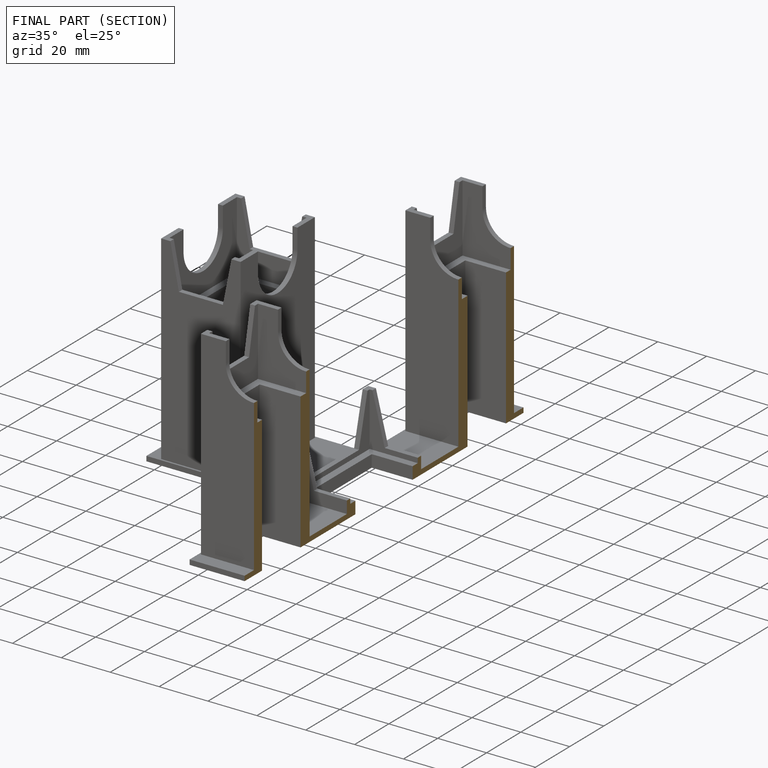
[diagram: finished part — half-section view (interior)]
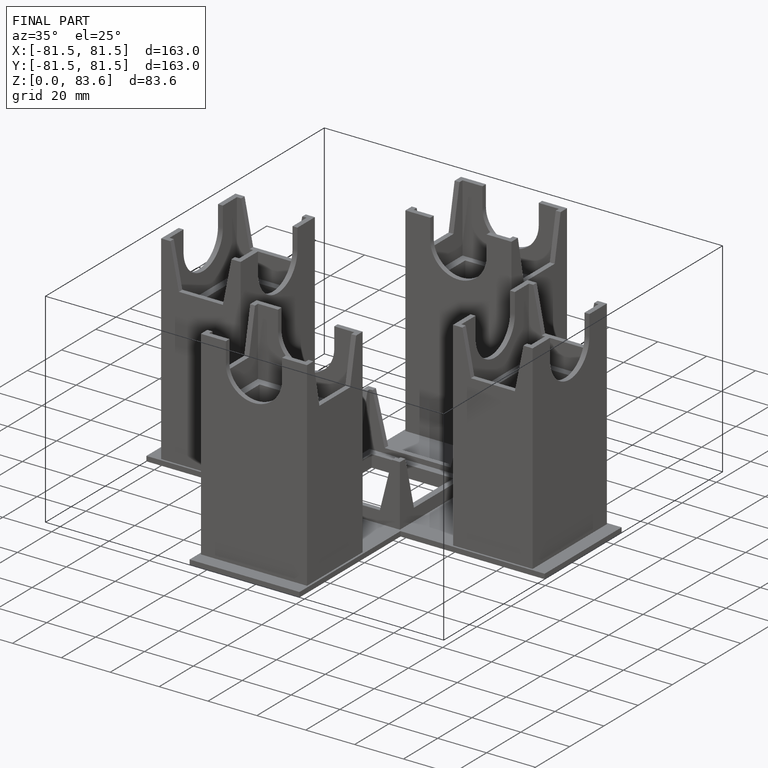
[diagram: finished part — iso view with bounding-box wireframe]
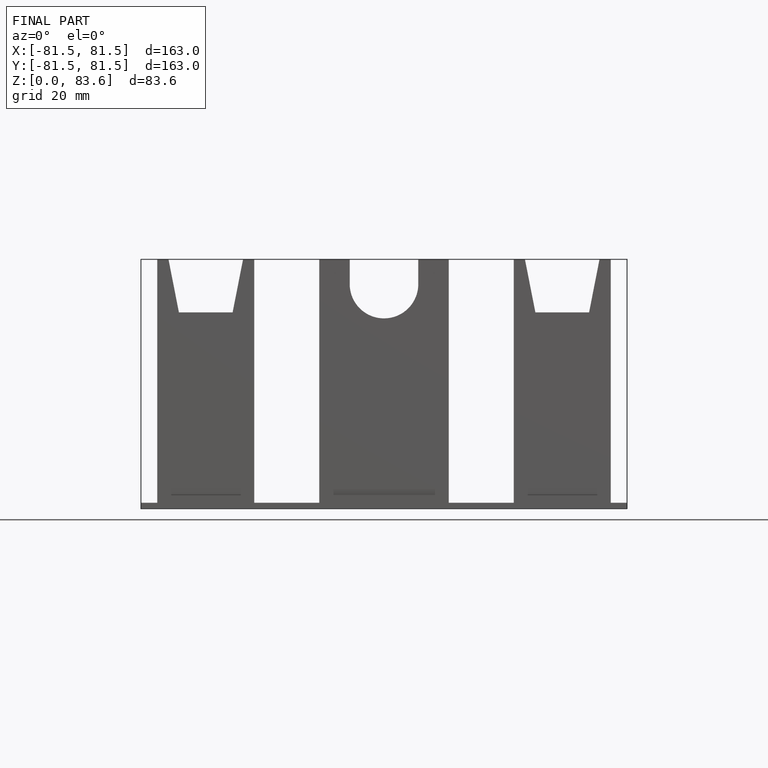
[diagram: finished part — front view with bounding-box wireframe]
